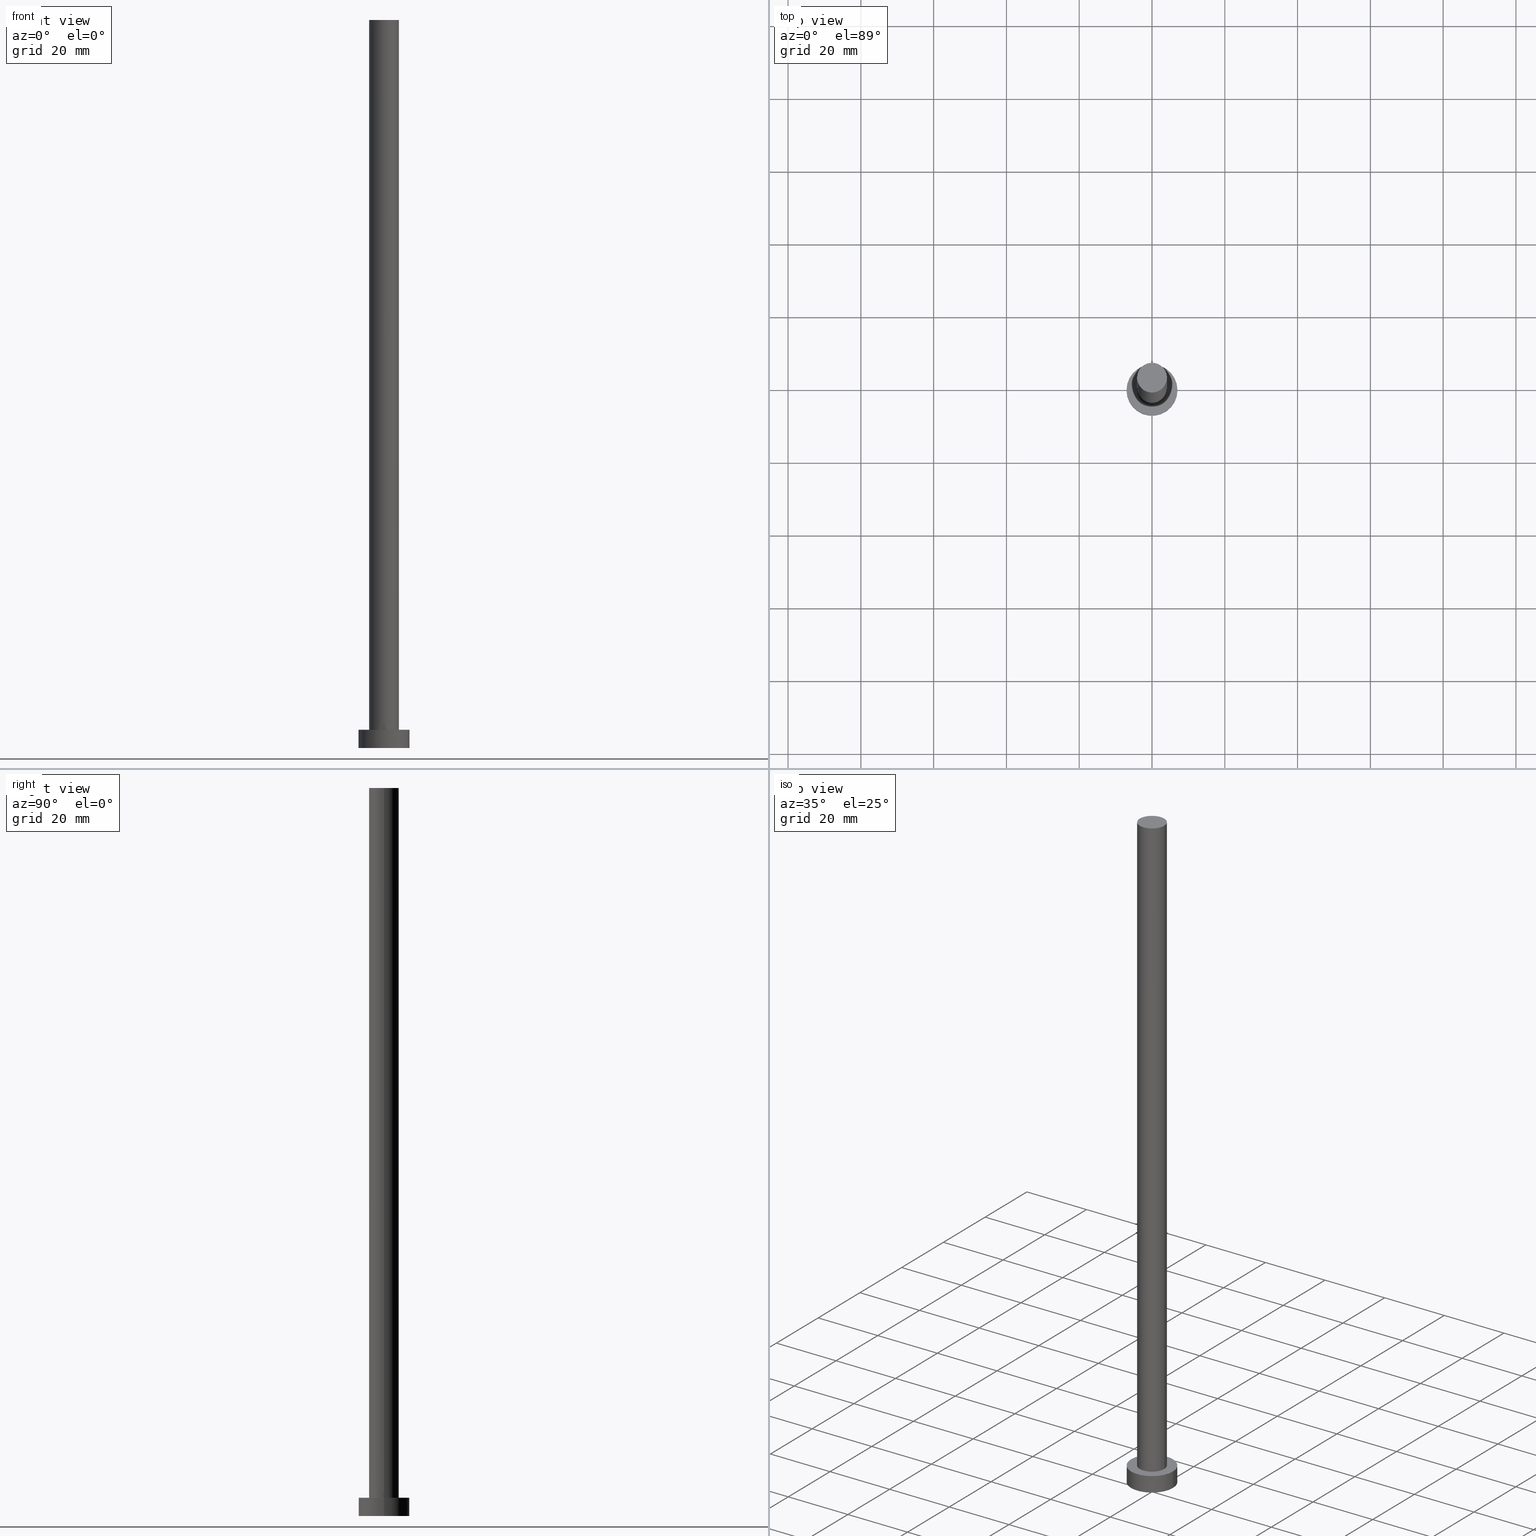
[diagram: canonical four-view strip — front | top / right | iso, engineering-drawing reading convention]
A machine part, canonical four-view strip (front | top / right | iso — engineering-drawing reading convention). The complete STEP part file that produces these views, byte-faithful:
ISO-10303-21;
HEADER;
FILE_DESCRIPTION (( 'STEP AP203' ),
    '1' );
FILE_NAME ('c86f.STEP',
    '2023-02-13T14:21:16',
    ( '' ),
    ( '' ),
    'SwSTEP 2.0',
    'SolidWorks 2019',
    '' );
FILE_SCHEMA (( 'CONFIG_CONTROL_DESIGN' ));
ENDSEC;

DATA;
#1 = EDGE_CURVE ( 'NONE', #135, #173, #228, .T. ) ;
#2 = AXIS2_PLACEMENT_3D ( 'NONE', #147, #34, #30 ) ;
#3 = EDGE_LOOP ( 'NONE', ( #177, #214, #159, #248 ) ) ;
#4 = CC_DESIGN_SECURITY_CLASSIFICATION ( #12, ( #208 ) ) ;
#5 = APPLICATION_PROTOCOL_DEFINITION ( 'international standard', 'config_control_design', 1994, #17 ) ;
#6 = EDGE_CURVE ( 'NONE', #192, #249, #180, .T. ) ;
#7 = PLANE ( 'NONE',  #146 ) ;
#8 = DATE_AND_TIME ( #178, #25 ) ;
#9 = ORIENTED_EDGE ( 'NONE', *, *, #47, .T. ) ;
#10 = DIRECTION ( 'NONE',  ( 1.000000000000000000, 0.000000000000000000, 0.000000000000000000 ) ) ;
#11 = APPROVAL_ROLE ( '' ) ;
#12 = SECURITY_CLASSIFICATION ( '', '', #181 ) ;
#13 = CARTESIAN_POINT ( 'NONE',  ( -7.000000000000000000, 0.000000000000000000, 0.000000000000000000 ) ) ;
#14 = CC_DESIGN_DATE_AND_TIME_ASSIGNMENT ( #162, #216, ( #72 ) ) ;
#15 = CARTESIAN_POINT ( 'NONE',  ( 0.000000000000000000, 0.000000000000000000, 200.0000000000000000 ) ) ;
#16 = ADVANCED_BREP_SHAPE_REPRESENTATION ( 'c86f', ( #56, #96 ), #77 ) ;
#17 = APPLICATION_CONTEXT ( 'configuration controlled 3d designs of mechanical parts and assemblies' ) ;
#18 = APPROVAL_PERSON_ORGANIZATION ( #31, #45, #11 ) ;
#19 = DESIGN_CONTEXT ( 'detailed design', #52, 'design' ) ;
#20 = LOCAL_TIME ( 15, 21, 16.00000000000000000, #158 ) ;
#21 = EDGE_CURVE ( 'NONE', #135, #28, #133, .T. ) ;
#22 = EDGE_CURVE ( 'NONE', #28, #89, #60, .T. ) ;
#23 =( NAMED_UNIT ( * ) PLANE_ANGLE_UNIT ( ) SI_UNIT ( $, .RADIAN. ) );
#24 = ORIENTED_EDGE ( 'NONE', *, *, #138, .T. ) ;
#25 = LOCAL_TIME ( 15, 21, 16.00000000000000000, #35 ) ;
#26 = APPROVAL_STATUS ( 'not_yet_approved' ) ;
#27 = CC_DESIGN_PERSON_AND_ORGANIZATION_ASSIGNMENT ( #51, #103, ( #208 ) ) ;
#28 = VERTEX_POINT ( 'NONE', #250 ) ;
#29 = ADVANCED_FACE ( 'NONE', ( #201 ), #73, .T. ) ;
#30 = DIRECTION ( 'NONE',  ( 1.000000000000000000, 0.000000000000000000, -0.000000000000000000 ) ) ;
#31 = PERSON_AND_ORGANIZATION ( #95, #246 ) ;
#32 = DIRECTION ( 'NONE',  ( 0.000000000000000000, 0.000000000000000000, 1.000000000000000000 ) ) ;
#33 = APPROVAL ( #26, 'NEUR�EN�' ) ;
#34 = DIRECTION ( 'NONE',  ( 0.000000000000000000, 0.000000000000000000, 1.000000000000000000 ) ) ;
#35 = COORDINATED_UNIVERSAL_TIME_OFFSET ( 1, 0, .AHEAD. ) ;
#36 = CARTESIAN_POINT ( 'NONE',  ( 0.000000000000000000, 0.000000000000000000, 200.0000000000000000 ) ) ;
#37 = SHAPE_DEFINITION_REPRESENTATION ( #149, #16 ) ;
#38 = CYLINDRICAL_SURFACE ( 'NONE', #185, 7.000000000000000000 ) ;
#39 = DIRECTION ( 'NONE',  ( -0.000000000000000000, -0.000000000000000000, -1.000000000000000000 ) ) ;
#40 = CC_DESIGN_PERSON_AND_ORGANIZATION_ASSIGNMENT ( #224, #81, ( #72 ) ) ;
#41 = LOCAL_TIME ( 15, 21, 16.00000000000000000, #140 ) ;
#42 = ORIENTED_EDGE ( 'NONE', *, *, #82, .T. ) ;
#43 = EDGE_CURVE ( 'NONE', #192, #130, #170, .T. ) ;
#44 = DIRECTION ( 'NONE',  ( 0.000000000000000000, 0.000000000000000000, 1.000000000000000000 ) ) ;
#45 = APPROVAL ( #64, 'NEUR�EN�' ) ;
#46 = CIRCLE ( 'NONE', #198, 7.000000000000000000 ) ;
#47 = EDGE_CURVE ( 'NONE', #130, #192, #154, .T. ) ;
#48 = ORIENTED_EDGE ( 'NONE', *, *, #22, .T. ) ;
#49 = EDGE_LOOP ( 'NONE', ( #153, #24, #80, #78 ) ) ;
#50 =( LENGTH_UNIT ( ) NAMED_UNIT ( * ) SI_UNIT ( .MILLI., .METRE. ) );
#51 = PERSON_AND_ORGANIZATION ( #95, #246 ) ;
#52 = APPLICATION_CONTEXT ( 'configuration controlled 3d designs of mechanical parts and assemblies' ) ;
#53 = APPROVAL_DATE_TIME ( #8, #45 ) ;
#54 = PERSON_AND_ORGANIZATION_ROLE ( 'design_owner' ) ;
#55 = CARTESIAN_POINT ( 'NONE',  ( 0.000000000000000000, 0.000000000000000000, 200.0000000000000000 ) ) ;
#56 = MANIFOLD_SOLID_BREP ( 'P�idat vysunut�m3', #99 ) ;
#57 = DIRECTION ( 'NONE',  ( 0.000000000000000000, 0.000000000000000000, 1.000000000000000000 ) ) ;
#58 = CARTESIAN_POINT ( 'NONE',  ( 4.099999999999999645, 5.021051876504147385E-16, 5.000000000000000000 ) ) ;
#59 = AXIS2_PLACEMENT_3D ( 'NONE', #55, #75, #197 ) ;
#60 = LINE ( 'NONE', #161, #132 ) ;
#61 = AXIS2_PLACEMENT_3D ( 'NONE', #218, #211, #210 ) ;
#62 = LINE ( 'NONE', #236, #229 ) ;
#63 = ORIENTED_EDGE ( 'NONE', *, *, #1, .F. ) ;
#64 = APPROVAL_STATUS ( 'not_yet_approved' ) ;
#65 = CC_DESIGN_PERSON_AND_ORGANIZATION_ASSIGNMENT ( #220, #54, ( #234 ) ) ;
#66 = CIRCLE ( 'NONE', #90, 4.099999999999999645 ) ;
#67 = CARTESIAN_POINT ( 'NONE',  ( 0.000000000000000000, 0.000000000000000000, 0.000000000000000000 ) ) ;
#68 = CARTESIAN_POINT ( 'NONE',  ( 0.000000000000000000, 0.000000000000000000, 0.000000000000000000 ) ) ;
#69 = CARTESIAN_POINT ( 'NONE',  ( 0.000000000000000000, 0.000000000000000000, 200.0000000000000000 ) ) ;
#70 = AXIS2_PLACEMENT_3D ( 'NONE', #120, #145, #240 ) ;
#71 = APPLICATION_PROTOCOL_DEFINITION ( 'international standard', 'config_control_design', 1994, #52 ) ;
#72 = PRODUCT_DEFINITION ( 'NEZN�M�', '', #208, #19 ) ;
#73 = CYLINDRICAL_SURFACE ( 'NONE', #206, 4.099999999999999645 ) ;
#74 = CARTESIAN_POINT ( 'NONE',  ( -4.099999999999999645, 0.000000000000000000, 200.0000000000000000 ) ) ;
#75 = DIRECTION ( 'NONE',  ( 0.000000000000000000, 0.000000000000000000, 1.000000000000000000 ) ) ;
#76 = APPROVAL ( #117, 'NEUR�EN�' ) ;
#77 =( GEOMETRIC_REPRESENTATION_CONTEXT ( 3 ) GLOBAL_UNCERTAINTY_ASSIGNED_CONTEXT ( ( #109 ) ) GLOBAL_UNIT_ASSIGNED_CONTEXT ( ( #50, #23, #196 ) ) REPRESENTATION_CONTEXT ( 'NONE', 'WORKASPACE' ) );
#78 = ORIENTED_EDGE ( 'NONE', *, *, #6, .F. ) ;
#79 = AXIS2_PLACEMENT_3D ( 'NONE', #118, #186, #189 ) ;
#80 = ORIENTED_EDGE ( 'NONE', *, *, #213, .T. ) ;
#81 = PERSON_AND_ORGANIZATION_ROLE ( 'creator' ) ;
#82 = EDGE_CURVE ( 'NONE', #89, #173, #163, .T. ) ;
#83 = PRODUCT_RELATED_PRODUCT_CATEGORY ( 'detail', '', ( #234 ) ) ;
#84 = APPROVAL_DATE_TIME ( #244, #33 ) ;
#85 = DIRECTION ( 'NONE',  ( 1.000000000000000000, 0.000000000000000000, 0.000000000000000000 ) ) ;
#86 = CARTESIAN_POINT ( 'NONE',  ( 7.000000000000000000, 8.572527594031473190E-16, 5.000000000000000000 ) ) ;
#87 = CALENDAR_DATE ( 2023, 13, 2 ) ;
#88 = PERSON_AND_ORGANIZATION ( #95, #246 ) ;
#89 = VERTEX_POINT ( 'NONE', #13 ) ;
#90 = AXIS2_PLACEMENT_3D ( 'NONE', #179, #165, #85 ) ;
#91 = FACE_OUTER_BOUND ( 'NONE', #171, .T. ) ;
#92 = DIRECTION ( 'NONE',  ( 0.000000000000000000, 0.000000000000000000, 1.000000000000000000 ) ) ;
#93 = AXIS2_PLACEMENT_3D ( 'NONE', #69, #121, #106 ) ;
#94 = CIRCLE ( 'NONE', #239, 4.099999999999999645 ) ;
#95 = PERSON ( 'NEUR�EN�', 'NEUR�EN�', 'NEUR�EN�', ('NEUR�EN�'), ('NEUR�EN�'), ('NEUR�EN�') ) ;
#96 = AXIS2_PLACEMENT_3D ( 'NONE', #67, #32, #139 ) ;
#97 = ORIENTED_EDGE ( 'NONE', *, *, #21, .T. ) ;
#98 = ORIENTED_EDGE ( 'NONE', *, *, #43, .T. ) ;
#99 = CLOSED_SHELL ( 'NONE', ( #29, #221, #160, #227, #104, #217, #107 ) ) ;
#100 = CC_DESIGN_DATE_AND_TIME_ASSIGNMENT ( #175, #195, ( #12 ) ) ;
#101 = ORIENTED_EDGE ( 'NONE', *, *, #129, .F. ) ;
#102 = CARTESIAN_POINT ( 'NONE',  ( 0.000000000000000000, 0.000000000000000000, 5.000000000000000000 ) ) ;
#103 = PERSON_AND_ORGANIZATION_ROLE ( 'design_supplier' ) ;
#104 = ADVANCED_FACE ( 'NONE', ( #91 ), #209, .F. ) ;
#105 = DIRECTION ( 'NONE',  ( 0.000000000000000000, 0.000000000000000000, 1.000000000000000000 ) ) ;
#106 = DIRECTION ( 'NONE',  ( 1.000000000000000000, 0.000000000000000000, 0.000000000000000000 ) ) ;
#107 = ADVANCED_FACE ( 'NONE', ( #203 ), #7, .T. ) ;
#108 = CIRCLE ( 'NONE', #235, 7.000000000000000000 ) ;
#109 = UNCERTAINTY_MEASURE_WITH_UNIT (LENGTH_MEASURE( 1.000000000000000082E-05 ), #50, 'distance_accuracy_value', 'NONE');
#110 = DIRECTION ( 'NONE',  ( 1.000000000000000000, 0.000000000000000000, -0.000000000000000000 ) ) ;
#111 = CARTESIAN_POINT ( 'NONE',  ( 7.000000000000000000, 8.572527594031473190E-16, 5.000000000000000000 ) ) ;
#112 = EDGE_LOOP ( 'NONE', ( #254, #237, #131, #172 ) ) ;
#113 = EDGE_LOOP ( 'NONE', ( #63, #101, #48, #42 ) ) ;
#114 = DIRECTION ( 'NONE',  ( 1.000000000000000000, 0.000000000000000000, 0.000000000000000000 ) ) ;
#115 = DIRECTION ( 'NONE',  ( -0.000000000000000000, -0.000000000000000000, -1.000000000000000000 ) ) ;
#116 = DIRECTION ( 'NONE',  ( 0.000000000000000000, 0.000000000000000000, 1.000000000000000000 ) ) ;
#117 = APPROVAL_STATUS ( 'not_yet_approved' ) ;
#118 = CARTESIAN_POINT ( 'NONE',  ( 0.000000000000000000, 0.000000000000000000, 0.000000000000000000 ) ) ;
#119 = CALENDAR_DATE ( 2023, 13, 2 ) ;
#120 = CARTESIAN_POINT ( 'NONE',  ( 0.000000000000000000, 0.000000000000000000, 200.0000000000000000 ) ) ;
#121 = DIRECTION ( 'NONE',  ( 0.000000000000000000, 0.000000000000000000, 1.000000000000000000 ) ) ;
#122 = VECTOR ( 'NONE', #39, 1000.000000000000000 ) ;
#123 = DIRECTION ( 'NONE',  ( -0.000000000000000000, -0.000000000000000000, -1.000000000000000000 ) ) ;
#124 = LOCAL_TIME ( 15, 21, 16.00000000000000000, #182 ) ;
#125 = APPROVAL_PERSON_ORGANIZATION ( #88, #76, #202 ) ;
#126 = CC_DESIGN_PERSON_AND_ORGANIZATION_ASSIGNMENT ( #134, #142, ( #208 ) ) ;
#127 = CARTESIAN_POINT ( 'NONE',  ( 4.099999999999999645, 5.021051876504147385E-16, 200.0000000000000000 ) ) ;
#128 = EDGE_CURVE ( 'NONE', #173, #89, #46, .T. ) ;
#129 = EDGE_CURVE ( 'NONE', #28, #135, #108, .T. ) ;
#130 = VERTEX_POINT ( 'NONE', #127 ) ;
#131 = ORIENTED_EDGE ( 'NONE', *, *, #6, .T. ) ;
#132 = VECTOR ( 'NONE', #123, 1000.000000000000000 ) ;
#133 = CIRCLE ( 'NONE', #232, 7.000000000000000000 ) ;
#134 = PERSON_AND_ORGANIZATION ( #95, #246 ) ;
#135 = VERTEX_POINT ( 'NONE', #111 ) ;
#136 = PERSON_AND_ORGANIZATION ( #95, #246 ) ;
#137 = CARTESIAN_POINT ( 'NONE',  ( -4.099999999999999645, 0.000000000000000000, 200.0000000000000000 ) ) ;
#138 = EDGE_CURVE ( 'NONE', #130, #174, #62, .T. ) ;
#139 = DIRECTION ( 'NONE',  ( 1.000000000000000000, 0.000000000000000000, 0.000000000000000000 ) ) ;
#140 = COORDINATED_UNIVERSAL_TIME_OFFSET ( 1, 0, .AHEAD. ) ;
#141 = DIRECTION ( 'NONE',  ( -0.000000000000000000, -0.000000000000000000, -1.000000000000000000 ) ) ;
#142 = PERSON_AND_ORGANIZATION_ROLE ( 'creator' ) ;
#143 = APPROVAL_DATE_TIME ( #245, #76 ) ;
#144 = DIRECTION ( 'NONE',  ( -0.000000000000000000, -0.000000000000000000, -1.000000000000000000 ) ) ;
#145 = DIRECTION ( 'NONE',  ( -0.000000000000000000, -0.000000000000000000, -1.000000000000000000 ) ) ;
#146 = AXIS2_PLACEMENT_3D ( 'NONE', #36, #243, #166 ) ;
#147 = CARTESIAN_POINT ( 'NONE',  ( 0.000000000000000000, 0.000000000000000000, 0.000000000000000000 ) ) ;
#148 = CARTESIAN_POINT ( 'NONE',  ( 0.000000000000000000, 0.000000000000000000, 5.000000000000000000 ) ) ;
#149 = PRODUCT_DEFINITION_SHAPE ( 'NONE', 'NONE',  #72 ) ;
#150 = APPROVAL_PERSON_ORGANIZATION ( #241, #33, #255 ) ;
#151 = LOCAL_TIME ( 15, 21, 16.00000000000000000, #238 ) ;
#152 = ORIENTED_EDGE ( 'NONE', *, *, #213, .F. ) ;
#153 = ORIENTED_EDGE ( 'NONE', *, *, #47, .F. ) ;
#154 = CIRCLE ( 'NONE', #59, 4.099999999999999645 ) ;
#155 = CALENDAR_DATE ( 2023, 13, 2 ) ;
#156 = FACE_OUTER_BOUND ( 'NONE', #112, .T. ) ;
#157 = ORIENTED_EDGE ( 'NONE', *, *, #128, .F. ) ;
#158 = COORDINATED_UNIVERSAL_TIME_OFFSET ( 1, 0, .AHEAD. ) ;
#159 = ORIENTED_EDGE ( 'NONE', *, *, #128, .T. ) ;
#160 = ADVANCED_FACE ( 'NONE', ( #242 ), #38, .T. ) ;
#161 = CARTESIAN_POINT ( 'NONE',  ( -7.000000000000000000, 0.000000000000000000, 5.000000000000000000 ) ) ;
#162 = DATE_AND_TIME ( #87, #41 ) ;
#163 = CIRCLE ( 'NONE', #79, 7.000000000000000000 ) ;
#164 = CALENDAR_DATE ( 2023, 13, 2 ) ;
#165 = DIRECTION ( 'NONE',  ( 0.000000000000000000, 0.000000000000000000, 1.000000000000000000 ) ) ;
#166 = DIRECTION ( 'NONE',  ( 1.000000000000000000, 0.000000000000000000, -0.000000000000000000 ) ) ;
#167 = ORIENTED_EDGE ( 'NONE', *, *, #194, .F. ) ;
#168 = DIRECTION ( 'NONE',  ( -1.000000000000000000, 0.000000000000000000, 0.000000000000000000 ) ) ;
#169 = CARTESIAN_POINT ( 'NONE',  ( -4.099999999999999645, 0.000000000000000000, 5.000000000000000000 ) ) ;
#170 = CIRCLE ( 'NONE', #93, 4.099999999999999645 ) ;
#171 = EDGE_LOOP ( 'NONE', ( #219, #157 ) ) ;
#172 = ORIENTED_EDGE ( 'NONE', *, *, #194, .T. ) ;
#173 = VERTEX_POINT ( 'NONE', #200 ) ;
#174 = VERTEX_POINT ( 'NONE', #58 ) ;
#175 = DATE_AND_TIME ( #155, #20 ) ;
#176 = PERSON_AND_ORGANIZATION_ROLE ( 'classification_officer' ) ;
#177 = ORIENTED_EDGE ( 'NONE', *, *, #21, .F. ) ;
#178 = CALENDAR_DATE ( 2023, 13, 2 ) ;
#179 = CARTESIAN_POINT ( 'NONE',  ( 0.000000000000000000, 0.000000000000000000, 5.000000000000000000 ) ) ;
#180 = LINE ( 'NONE', #74, #215 ) ;
#181 = SECURITY_CLASSIFICATION_LEVEL ( 'unclassified' ) ;
#182 = COORDINATED_UNIVERSAL_TIME_OFFSET ( 1, 0, .AHEAD. ) ;
#183 = DIRECTION ( 'NONE',  ( -1.000000000000000000, 0.000000000000000000, 0.000000000000000000 ) ) ;
#184 = DIRECTION ( 'NONE',  ( 1.000000000000000000, 0.000000000000000000, 0.000000000000000000 ) ) ;
#185 = AXIS2_PLACEMENT_3D ( 'NONE', #188, #115, #183 ) ;
#186 = DIRECTION ( 'NONE',  ( 0.000000000000000000, 0.000000000000000000, 1.000000000000000000 ) ) ;
#187 = CC_DESIGN_PERSON_AND_ORGANIZATION_ASSIGNMENT ( #136, #176, ( #12 ) ) ;
#188 = CARTESIAN_POINT ( 'NONE',  ( 0.000000000000000000, 0.000000000000000000, 5.000000000000000000 ) ) ;
#189 = DIRECTION ( 'NONE',  ( 1.000000000000000000, 0.000000000000000000, 0.000000000000000000 ) ) ;
#190 = FACE_BOUND ( 'NONE', #253, .T. ) ;
#191 = EDGE_LOOP ( 'NONE', ( #205, #97 ) ) ;
#192 = VERTEX_POINT ( 'NONE', #137 ) ;
#193 = CC_DESIGN_APPROVAL ( #33, ( #12 ) ) ;
#194 = EDGE_CURVE ( 'NONE', #249, #174, #66, .T. ) ;
#195 = DATE_TIME_ROLE ( 'classification_date' ) ;
#196 =( NAMED_UNIT ( * ) SI_UNIT ( $, .STERADIAN. ) SOLID_ANGLE_UNIT ( ) );
#197 = DIRECTION ( 'NONE',  ( 1.000000000000000000, 0.000000000000000000, 0.000000000000000000 ) ) ;
#198 = AXIS2_PLACEMENT_3D ( 'NONE', #68, #116, #10 ) ;
#199 = MECHANICAL_CONTEXT ( 'NONE', #17, 'mechanical' ) ;
#200 = CARTESIAN_POINT ( 'NONE',  ( 7.000000000000000000, 8.572527594031473190E-16, 0.000000000000000000 ) ) ;
#201 = FACE_OUTER_BOUND ( 'NONE', #49, .T. ) ;
#202 = APPROVAL_ROLE ( '' ) ;
#203 = FACE_OUTER_BOUND ( 'NONE', #230, .T. ) ;
#204 = FACE_OUTER_BOUND ( 'NONE', #3, .T. ) ;
#205 = ORIENTED_EDGE ( 'NONE', *, *, #129, .T. ) ;
#206 = AXIS2_PLACEMENT_3D ( 'NONE', #15, #225, #168 ) ;
#207 = CYLINDRICAL_SURFACE ( 'NONE', #70, 4.099999999999999645 ) ;
#208 = PRODUCT_DEFINITION_FORMATION_WITH_SPECIFIED_SOURCE ( 'LIBOVOLN�', '', #234, .NOT_KNOWN. ) ;
#209 = PLANE ( 'NONE',  #2 ) ;
#210 = DIRECTION ( 'NONE',  ( -1.000000000000000000, 0.000000000000000000, 0.000000000000000000 ) ) ;
#211 = DIRECTION ( 'NONE',  ( -0.000000000000000000, -0.000000000000000000, -1.000000000000000000 ) ) ;
#212 = AXIS2_PLACEMENT_3D ( 'NONE', #148, #44, #110 ) ;
#213 = EDGE_CURVE ( 'NONE', #174, #249, #94, .T. ) ;
#214 = ORIENTED_EDGE ( 'NONE', *, *, #1, .T. ) ;
#215 = VECTOR ( 'NONE', #144, 1000.000000000000000 ) ;
#216 = DATE_TIME_ROLE ( 'creation_date' ) ;
#217 = ADVANCED_FACE ( 'NONE', ( #156 ), #207, .T. ) ;
#218 = CARTESIAN_POINT ( 'NONE',  ( 0.000000000000000000, 0.000000000000000000, 5.000000000000000000 ) ) ;
#219 = ORIENTED_EDGE ( 'NONE', *, *, #82, .F. ) ;
#220 = PERSON_AND_ORGANIZATION ( #95, #246 ) ;
#221 = ADVANCED_FACE ( 'NONE', ( #204 ), #226, .T. ) ;
#222 = DIRECTION ( 'NONE',  ( 1.000000000000000000, 0.000000000000000000, 0.000000000000000000 ) ) ;
#223 = CARTESIAN_POINT ( 'NONE',  ( 0.000000000000000000, 0.000000000000000000, 5.000000000000000000 ) ) ;
#224 = PERSON_AND_ORGANIZATION ( #95, #246 ) ;
#225 = DIRECTION ( 'NONE',  ( -0.000000000000000000, -0.000000000000000000, -1.000000000000000000 ) ) ;
#226 = CYLINDRICAL_SURFACE ( 'NONE', #61, 7.000000000000000000 ) ;
#227 = ADVANCED_FACE ( 'NONE', ( #190, #251 ), #231, .T. ) ;
#228 = LINE ( 'NONE', #86, #122 ) ;
#229 = VECTOR ( 'NONE', #141, 1000.000000000000000 ) ;
#230 = EDGE_LOOP ( 'NONE', ( #98, #9 ) ) ;
#231 = PLANE ( 'NONE',  #212 ) ;
#232 = AXIS2_PLACEMENT_3D ( 'NONE', #223, #92, #114 ) ;
#233 = CC_DESIGN_APPROVAL ( #45, ( #208 ) ) ;
#234 = PRODUCT ( 'c86f', 'c86f', '', ( #199 ) ) ;
#235 = AXIS2_PLACEMENT_3D ( 'NONE', #102, #105, #184 ) ;
#236 = CARTESIAN_POINT ( 'NONE',  ( 4.099999999999999645, 5.021051876504147385E-16, 200.0000000000000000 ) ) ;
#237 = ORIENTED_EDGE ( 'NONE', *, *, #43, .F. ) ;
#238 = COORDINATED_UNIVERSAL_TIME_OFFSET ( 1, 0, .AHEAD. ) ;
#239 = AXIS2_PLACEMENT_3D ( 'NONE', #247, #57, #222 ) ;
#240 = DIRECTION ( 'NONE',  ( -1.000000000000000000, 0.000000000000000000, 0.000000000000000000 ) ) ;
#241 = PERSON_AND_ORGANIZATION ( #95, #246 ) ;
#242 = FACE_OUTER_BOUND ( 'NONE', #113, .T. ) ;
#243 = DIRECTION ( 'NONE',  ( 0.000000000000000000, 0.000000000000000000, 1.000000000000000000 ) ) ;
#244 = DATE_AND_TIME ( #119, #151 ) ;
#245 = DATE_AND_TIME ( #164, #124 ) ;
#246 = ORGANIZATION ( 'NEUR�EN�', 'NEUR�EN�', '' ) ;
#247 = CARTESIAN_POINT ( 'NONE',  ( 0.000000000000000000, 0.000000000000000000, 5.000000000000000000 ) ) ;
#248 = ORIENTED_EDGE ( 'NONE', *, *, #22, .F. ) ;
#249 = VERTEX_POINT ( 'NONE', #169 ) ;
#250 = CARTESIAN_POINT ( 'NONE',  ( -7.000000000000000000, 0.000000000000000000, 5.000000000000000000 ) ) ;
#251 = FACE_OUTER_BOUND ( 'NONE', #191, .T. ) ;
#252 = CC_DESIGN_APPROVAL ( #76, ( #72 ) ) ;
#253 = EDGE_LOOP ( 'NONE', ( #167, #152 ) ) ;
#254 = ORIENTED_EDGE ( 'NONE', *, *, #138, .F. ) ;
#255 = APPROVAL_ROLE ( '' ) ;
ENDSEC;
END-ISO-10303-21;
